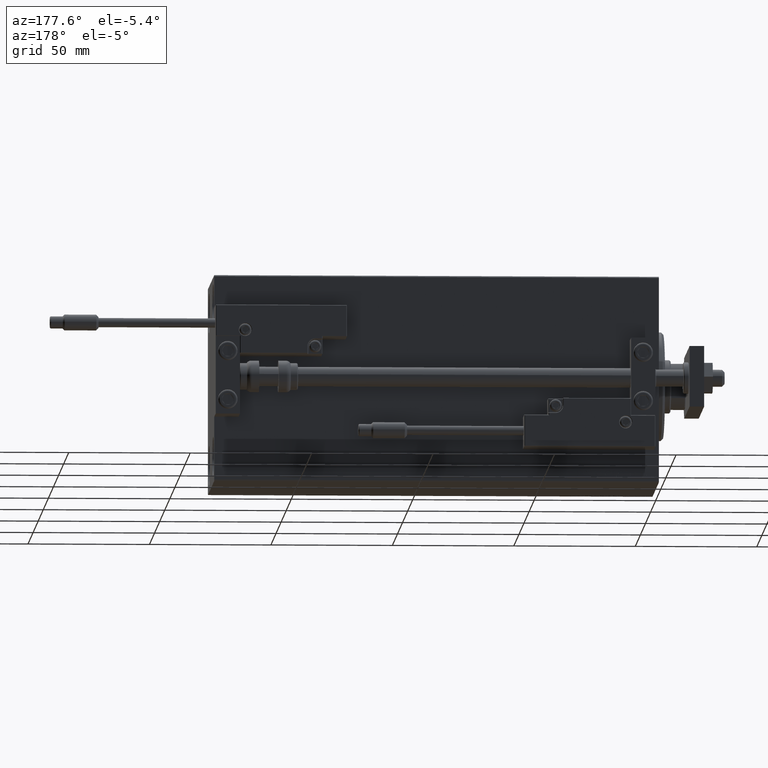
[diagram: clean part render]
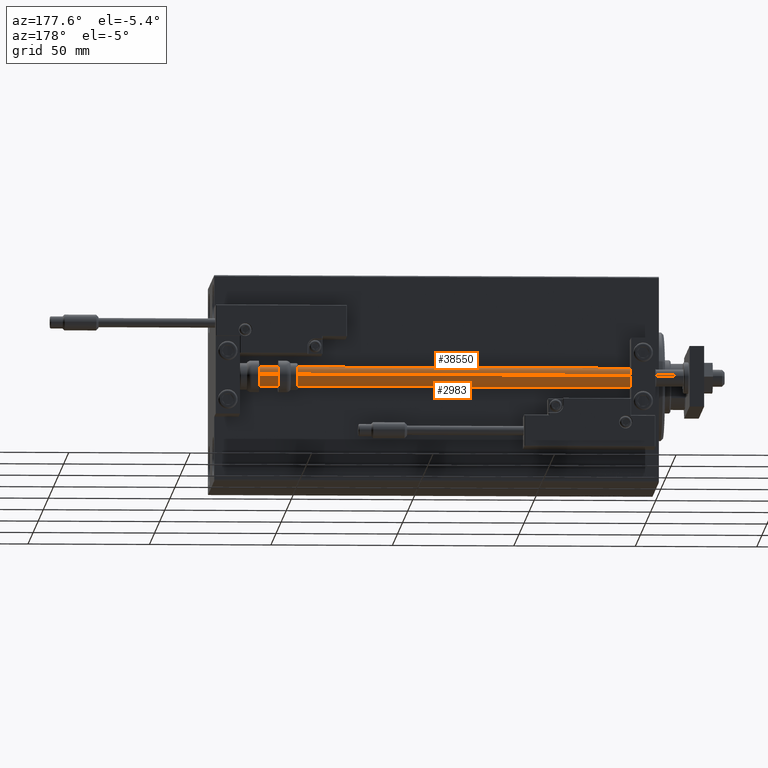
[diagram: same view with one multi-face feature highlighted, each face labeled with its STEP entity id]
A machine part, auxiliary view. The highlighted faces form ONE feature: a constant-radius fillet chain: 2 tangent blend faces with common blend radius 4 mm. The faces share edges in the B-rep.
Their STEP definitions:
[1] entity #38550 (Cylinder):
#1011 = EDGE_LOOP ( 'NONE', ( #4359, #36022, #17115, #13037 ) ) ;
#2376 = EDGE_CURVE ( 'NONE', #4687, #39701, #13448, .T. ) ;
#2564 = DIRECTION ( 'NONE',  ( 1.000000000000000000, 0.000000000000000000, 0.000000000000000000 ) ) ;
#3405 = DIRECTION ( 'NONE',  ( -1.000000000000000000, 0.000000000000000000, 0.000000000000000000 ) ) ;
#4359 = ORIENTED_EDGE ( 'NONE', *, *, #2376, .F. ) ;
#4511 = LINE ( 'NONE', #32638, #39746 ) ;
#4687 = VERTEX_POINT ( 'NONE', #34358 ) ;
#7217 = CIRCLE ( 'NONE', #37423, 4.000000000000000000 ) ;
#7232 = EDGE_CURVE ( 'NONE', #4687, #36916, #21498, .T. ) ;
#7506 = DIRECTION ( 'NONE',  ( -0.000000000000000000, -0.000000000000000000, -1.000000000000000000 ) ) ;
#7761 = CARTESIAN_POINT ( 'NONE',  ( 0.000000000000000000, 0.000000000000000000, 2.000000000000029310 ) ) ;
#12100 = DIRECTION ( 'NONE',  ( -0.000000000000000000, -0.000000000000000000, 1.000000000000000000 ) ) ;
#13037 = ORIENTED_EDGE ( 'NONE', *, *, #28191, .F. ) ;
#13065 = DIRECTION ( 'NONE',  ( -0.000000000000000000, -0.000000000000000000, -1.000000000000000000 ) ) ;
#13448 = CIRCLE ( 'NONE', #42030, 4.000000000000000000 ) ;
#14088 = VERTEX_POINT ( 'NONE', #35846 ) ;
#17115 = ORIENTED_EDGE ( 'NONE', *, *, #32421, .T. ) ;
#20478 = CARTESIAN_POINT ( 'NONE',  ( -4.000000000000000000, 0.000000000000000000, 183.0000000000000000 ) ) ;
#21498 = LINE ( 'NONE', #44019, #42249 ) ;
#22096 = CARTESIAN_POINT ( 'NONE',  ( 0.000000000000000000, 0.000000000000000000, 183.0000000000000000 ) ) ;
#27453 = DIRECTION ( 'NONE',  ( 1.000000000000000000, 0.000000000000000000, 0.000000000000000000 ) ) ;
#28191 = EDGE_CURVE ( 'NONE', #39701, #14088, #4511, .T. ) ;
#30675 = DIRECTION ( 'NONE',  ( 0.000000000000000000, 0.000000000000000000, 1.000000000000000000 ) ) ;
#32421 = EDGE_CURVE ( 'NONE', #36916, #14088, #7217, .T. ) ;
#32638 = CARTESIAN_POINT ( 'NONE',  ( -4.000000000000000000, 0.000000000000000000, 183.0000000000000000 ) ) ;
#34358 = CARTESIAN_POINT ( 'NONE',  ( 4.000000000000000000, 4.898587196589412829E-16, 183.0000000000000000 ) ) ;
#34608 = CYLINDRICAL_SURFACE ( 'NONE', #42405, 4.000000000000000000 ) ;
#35846 = CARTESIAN_POINT ( 'NONE',  ( -4.000000000000000000, 0.000000000000000000, 2.000000000000029310 ) ) ;
#36022 = ORIENTED_EDGE ( 'NONE', *, *, #7232, .T. ) ;
#36916 = VERTEX_POINT ( 'NONE', #49528 ) ;
#37423 = AXIS2_PLACEMENT_3D ( 'NONE', #7761, #12100, #27453 ) ;
#38550 = ADVANCED_FACE ( 'NONE', ( #42282 ), #34608, .T. ) ;
#39701 = VERTEX_POINT ( 'NONE', #20478 ) ;
#39746 = VECTOR ( 'NONE', #43653, 1000.000000000000000 ) ;
#42030 = AXIS2_PLACEMENT_3D ( 'NONE', #45543, #30675, #2564 ) ;
#42249 = VECTOR ( 'NONE', #13065, 1000.000000000000000 ) ;
#42282 = FACE_OUTER_BOUND ( 'NONE', #1011, .T. ) ;
#42405 = AXIS2_PLACEMENT_3D ( 'NONE', #22096, #7506, #3405 ) ;
#43653 = DIRECTION ( 'NONE',  ( -0.000000000000000000, -0.000000000000000000, -1.000000000000000000 ) ) ;
#44019 = CARTESIAN_POINT ( 'NONE',  ( 4.000000000000000000, 4.898587196589412829E-16, 183.0000000000000000 ) ) ;
#45543 = CARTESIAN_POINT ( 'NONE',  ( 0.000000000000000000, 0.000000000000000000, 183.0000000000000000 ) ) ;
#49528 = CARTESIAN_POINT ( 'NONE',  ( 4.000000000000000000, 4.898587196589412829E-16, 2.000000000000029310 ) ) ;
[2] entity #2983 (Cylinder):
#2176 = DIRECTION ( 'NONE',  ( -0.000000000000000000, -0.000000000000000000, -1.000000000000000000 ) ) ;
#2983 = ADVANCED_FACE ( 'NONE', ( #25473 ), #37237, .T. ) ;
#4511 = LINE ( 'NONE', #32638, #39746 ) ;
#4687 = VERTEX_POINT ( 'NONE', #34358 ) ;
#7232 = EDGE_CURVE ( 'NONE', #4687, #36916, #21498, .T. ) ;
#7319 = ORIENTED_EDGE ( 'NONE', *, *, #7232, .F. ) ;
#10171 = EDGE_CURVE ( 'NONE', #39701, #4687, #20164, .T. ) ;
#10611 = DIRECTION ( 'NONE',  ( -1.000000000000000000, 0.000000000000000000, 0.000000000000000000 ) ) ;
#11063 = ORIENTED_EDGE ( 'NONE', *, *, #10171, .F. ) ;
#13065 = DIRECTION ( 'NONE',  ( -0.000000000000000000, -0.000000000000000000, -1.000000000000000000 ) ) ;
#14088 = VERTEX_POINT ( 'NONE', #35846 ) ;
#14424 = DIRECTION ( 'NONE',  ( -0.000000000000000000, -0.000000000000000000, 1.000000000000000000 ) ) ;
#16651 = EDGE_CURVE ( 'NONE', #14088, #36916, #44912, .T. ) ;
#19943 = ORIENTED_EDGE ( 'NONE', *, *, #28191, .T. ) ;
#20164 = CIRCLE ( 'NONE', #48771, 4.000000000000000000 ) ;
#20478 = CARTESIAN_POINT ( 'NONE',  ( -4.000000000000000000, 0.000000000000000000, 183.0000000000000000 ) ) ;
#21498 = LINE ( 'NONE', #44019, #42249 ) ;
#22634 = CARTESIAN_POINT ( 'NONE',  ( 0.000000000000000000, 0.000000000000000000, 183.0000000000000000 ) ) ;
#23328 = DIRECTION ( 'NONE',  ( 1.000000000000000000, 0.000000000000000000, 0.000000000000000000 ) ) ;
#23659 = AXIS2_PLACEMENT_3D ( 'NONE', #46410, #14424, #49496 ) ;
#25473 = FACE_OUTER_BOUND ( 'NONE', #38139, .T. ) ;
#26072 = ORIENTED_EDGE ( 'NONE', *, *, #16651, .T. ) ;
#27659 = CARTESIAN_POINT ( 'NONE',  ( 0.000000000000000000, 0.000000000000000000, 183.0000000000000000 ) ) ;
#28191 = EDGE_CURVE ( 'NONE', #39701, #14088, #4511, .T. ) ;
#30738 = DIRECTION ( 'NONE',  ( 0.000000000000000000, 0.000000000000000000, 1.000000000000000000 ) ) ;
#32638 = CARTESIAN_POINT ( 'NONE',  ( -4.000000000000000000, 0.000000000000000000, 183.0000000000000000 ) ) ;
#34358 = CARTESIAN_POINT ( 'NONE',  ( 4.000000000000000000, 4.898587196589412829E-16, 183.0000000000000000 ) ) ;
#35846 = CARTESIAN_POINT ( 'NONE',  ( -4.000000000000000000, 0.000000000000000000, 2.000000000000029310 ) ) ;
#36916 = VERTEX_POINT ( 'NONE', #49528 ) ;
#37237 = CYLINDRICAL_SURFACE ( 'NONE', #38016, 4.000000000000000000 ) ;
#38016 = AXIS2_PLACEMENT_3D ( 'NONE', #22634, #2176, #10611 ) ;
#38139 = EDGE_LOOP ( 'NONE', ( #7319, #11063, #19943, #26072 ) ) ;
#39701 = VERTEX_POINT ( 'NONE', #20478 ) ;
#39746 = VECTOR ( 'NONE', #43653, 1000.000000000000000 ) ;
#42249 = VECTOR ( 'NONE', #13065, 1000.000000000000000 ) ;
#43653 = DIRECTION ( 'NONE',  ( -0.000000000000000000, -0.000000000000000000, -1.000000000000000000 ) ) ;
#44019 = CARTESIAN_POINT ( 'NONE',  ( 4.000000000000000000, 4.898587196589412829E-16, 183.0000000000000000 ) ) ;
#44912 = CIRCLE ( 'NONE', #23659, 4.000000000000000000 ) ;
#46410 = CARTESIAN_POINT ( 'NONE',  ( 0.000000000000000000, 0.000000000000000000, 2.000000000000029310 ) ) ;
#48771 = AXIS2_PLACEMENT_3D ( 'NONE', #27659, #30738, #23328 ) ;
#49496 = DIRECTION ( 'NONE',  ( 1.000000000000000000, 0.000000000000000000, 0.000000000000000000 ) ) ;
#49528 = CARTESIAN_POINT ( 'NONE',  ( 4.000000000000000000, 4.898587196589412829E-16, 2.000000000000029310 ) ) ;